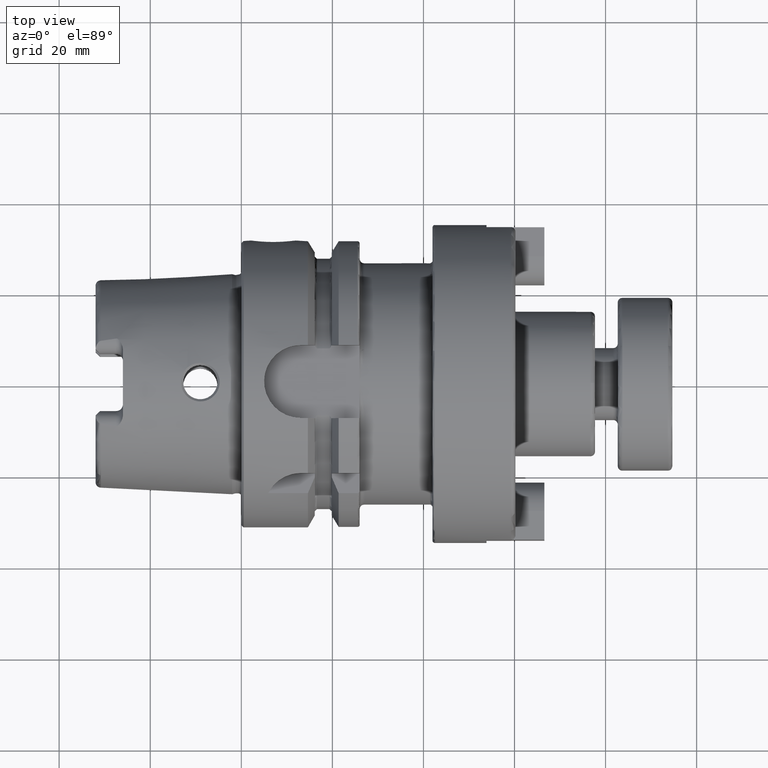
[diagram: clean part render]
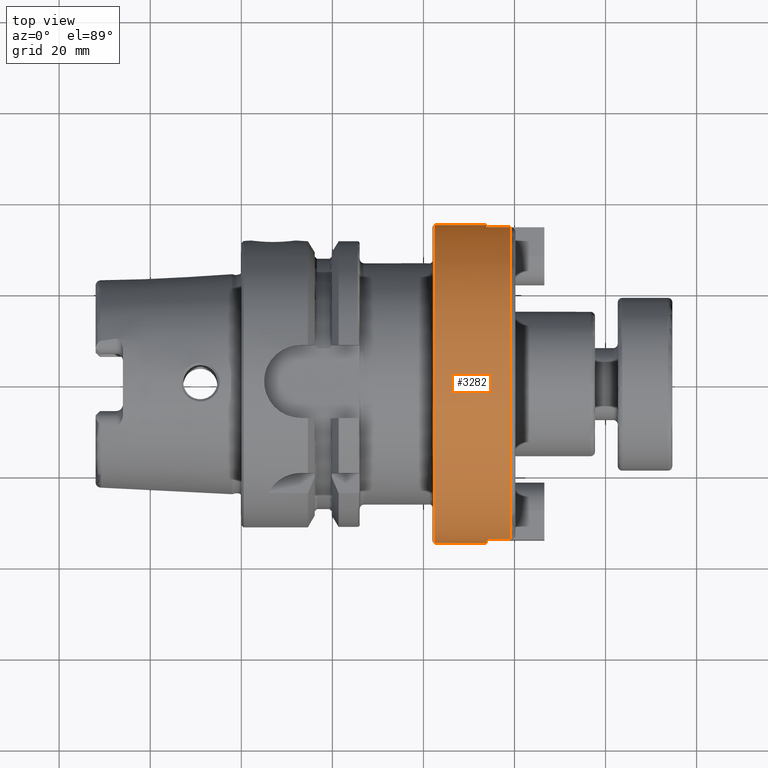
[diagram: same view with one face highlighted and labeled with its STEP entity id]
A machine part, top view. The second image highlights one B-rep face of the part: STEP entity #3282.
In plain terms, the highlighted cylindrical surface (bore or boss wall) has radius 34.925 mm, axis along (1, 0, 0).
Its self-contained STEP definition (entity closure, byte-faithful):
#158=CYLINDRICAL_SURFACE('',#3639,34.925);
#200=LINE('',#5030,#400);
#204=LINE('',#5084,#404);
#216=LINE('',#5237,#416);
#217=LINE('',#5240,#417);
#233=LINE('',#5327,#433);
#400=VECTOR('',#3981,10.);
#404=VECTOR('',#3995,10.);
#416=VECTOR('',#4067,10.);
#417=VECTOR('',#4070,10.);
#433=VECTOR('',#4176,34.925);
#711=FACE_OUTER_BOUND('',#917,.T.);
#917=EDGE_LOOP('',(#2384,#2385,#2386,#2387,#2388,#2389,#2390,#2391,#2392,
#2393,#2394,#2395,#2396));
#1099=CIRCLE('',#3568,34.925);
#1100=CIRCLE('',#3569,34.925);
#1111=CIRCLE('',#3584,34.925);
#1112=CIRCLE('',#3586,34.925);
#1118=CIRCLE('',#3598,34.925);
#1137=CIRCLE('',#3633,34.925);
#1138=CIRCLE('',#3634,34.925);
#1375=VERTEX_POINT('',#5013);
#1378=VERTEX_POINT('',#5028);
#1385=VERTEX_POINT('',#5071);
#1387=VERTEX_POINT('',#5083);
#1390=VERTEX_POINT('',#5094);
#1408=VERTEX_POINT('',#5183);
#1409=VERTEX_POINT('',#5196);
#1414=VERTEX_POINT('',#5235);
#1415=VERTEX_POINT('',#5239);
#1439=VERTEX_POINT('',#5317);
#1440=VERTEX_POINT('',#5318);
#1709=EDGE_CURVE('',#1375,#1378,#200,.T.);
#1719=EDGE_CURVE('',#1387,#1385,#204,.T.);
#1725=EDGE_CURVE('',#1378,#1390,#1099,.T.);
#1726=EDGE_CURVE('',#1390,#1387,#1100,.T.);
#1748=EDGE_CURVE('',#1375,#1408,#1111,.T.);
#1751=EDGE_CURVE('',#1409,#1385,#1112,.T.);
#1760=EDGE_CURVE('',#1409,#1414,#216,.T.);
#1761=EDGE_CURVE('',#1415,#1408,#217,.T.);
#1765=EDGE_CURVE('',#1414,#1415,#1118,.T.);
#1797=EDGE_CURVE('',#1439,#1440,#1137,.T.);
#1798=EDGE_CURVE('',#1440,#1439,#1138,.T.);
#1802=EDGE_CURVE('',#1390,#1440,#233,.T.);
#2384=ORIENTED_EDGE('',*,*,#1719,.T.);
#2385=ORIENTED_EDGE('',*,*,#1751,.F.);
#2386=ORIENTED_EDGE('',*,*,#1760,.T.);
#2387=ORIENTED_EDGE('',*,*,#1765,.T.);
#2388=ORIENTED_EDGE('',*,*,#1761,.T.);
#2389=ORIENTED_EDGE('',*,*,#1748,.F.);
#2390=ORIENTED_EDGE('',*,*,#1709,.T.);
#2391=ORIENTED_EDGE('',*,*,#1725,.T.);
#2392=ORIENTED_EDGE('',*,*,#1802,.T.);
#2393=ORIENTED_EDGE('',*,*,#1797,.F.);
#2394=ORIENTED_EDGE('',*,*,#1798,.F.);
#2395=ORIENTED_EDGE('',*,*,#1802,.F.);
#2396=ORIENTED_EDGE('',*,*,#1726,.T.);
#3282=ADVANCED_FACE('',(#711),#158,.T.);
#3568=AXIS2_PLACEMENT_3D('',#5095,#4007,#4008);
#3569=AXIS2_PLACEMENT_3D('',#5096,#4009,#4010);
#3584=AXIS2_PLACEMENT_3D('',#5184,#4044,#4045);
#3586=AXIS2_PLACEMENT_3D('',#5207,#4048,#4049);
#3598=AXIS2_PLACEMENT_3D('',#5247,#4079,#4080);
#3633=AXIS2_PLACEMENT_3D('',#5319,#4162,#4163);
#3634=AXIS2_PLACEMENT_3D('',#5320,#4164,#4165);
#3639=AXIS2_PLACEMENT_3D('',#5326,#4174,#4175);
#3981=DIRECTION('',(-1.,0.,0.));
#3995=DIRECTION('',(1.,0.,0.));
#4007=DIRECTION('center_axis',(-1.,0.,0.));
#4008=DIRECTION('ref_axis',(0.,1.,0.));
#4009=DIRECTION('center_axis',(-1.,0.,0.));
#4010=DIRECTION('ref_axis',(0.,1.,0.));
#4044=DIRECTION('center_axis',(1.,0.,0.));
#4045=DIRECTION('ref_axis',(0.,-1.,1.83697019872103E-16));
#4048=DIRECTION('center_axis',(1.,0.,0.));
#4049=DIRECTION('ref_axis',(0.,-1.,1.83697019872103E-16));
#4067=DIRECTION('',(-1.,0.,0.));
#4070=DIRECTION('',(1.,0.,0.));
#4079=DIRECTION('center_axis',(-1.,0.,0.));
#4080=DIRECTION('ref_axis',(0.,1.,0.));
#4162=DIRECTION('center_axis',(-1.,0.,0.));
#4163=DIRECTION('ref_axis',(0.,-1.,1.83697019872103E-16));
#4164=DIRECTION('center_axis',(-1.,0.,0.));
#4165=DIRECTION('ref_axis',(0.,-1.,1.83697019872103E-16));
#4174=DIRECTION('center_axis',(1.,0.,0.));
#4175=DIRECTION('ref_axis',(0.,1.,0.));
#4176=DIRECTION('',(-1.,0.,0.));
#5013=CARTESIAN_POINT('',(59.2,-34.3428758987945,-6.35));
#5028=CARTESIAN_POINT('',(53.85,-34.3428758987945,-6.35));
#5030=CARTESIAN_POINT('',(51.1,-34.3428758987945,-6.35));
#5071=CARTESIAN_POINT('',(59.2,-34.3428758987945,6.35));
#5083=CARTESIAN_POINT('',(53.85,-34.3428758987945,6.35));
#5084=CARTESIAN_POINT('',(51.1,-34.3428758987945,6.35));
#5094=CARTESIAN_POINT('',(53.85,-34.925,-4.27707894602213E-15));
#5095=CARTESIAN_POINT('Origin',(53.85,0.,0.));
#5096=CARTESIAN_POINT('Origin',(53.85,0.,0.));
#5183=CARTESIAN_POINT('',(59.2,34.3428758987945,-6.35));
#5184=CARTESIAN_POINT('Origin',(59.2,0.,0.));
#5196=CARTESIAN_POINT('',(59.2,34.3428758987945,6.35));
#5207=CARTESIAN_POINT('Origin',(59.2,0.,0.));
#5235=CARTESIAN_POINT('',(53.85,34.3428758987945,6.35));
#5237=CARTESIAN_POINT('',(51.1,34.3428758987945,6.35));
#5239=CARTESIAN_POINT('',(53.85,34.3428758987945,-6.35));
#5240=CARTESIAN_POINT('',(51.1,34.3428758987945,-6.35));
#5247=CARTESIAN_POINT('Origin',(53.85,0.,0.));
#5317=CARTESIAN_POINT('',(42.5,-4.27707894602213E-15,34.925));
#5318=CARTESIAN_POINT('',(42.5,-34.925,-4.27707894602213E-15));
#5319=CARTESIAN_POINT('Origin',(42.5,0.,0.));
#5320=CARTESIAN_POINT('Origin',(42.5,0.,0.));
#5326=CARTESIAN_POINT('Origin',(51.1,0.,0.));
#5327=CARTESIAN_POINT('',(51.1,-34.925,-4.27707894602213E-15));